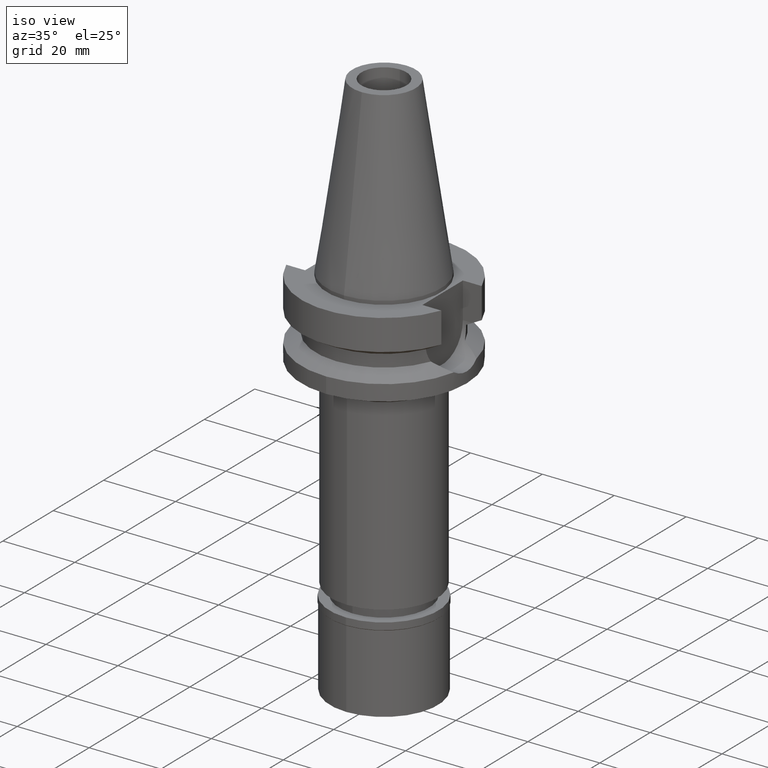
[diagram: clean part render]
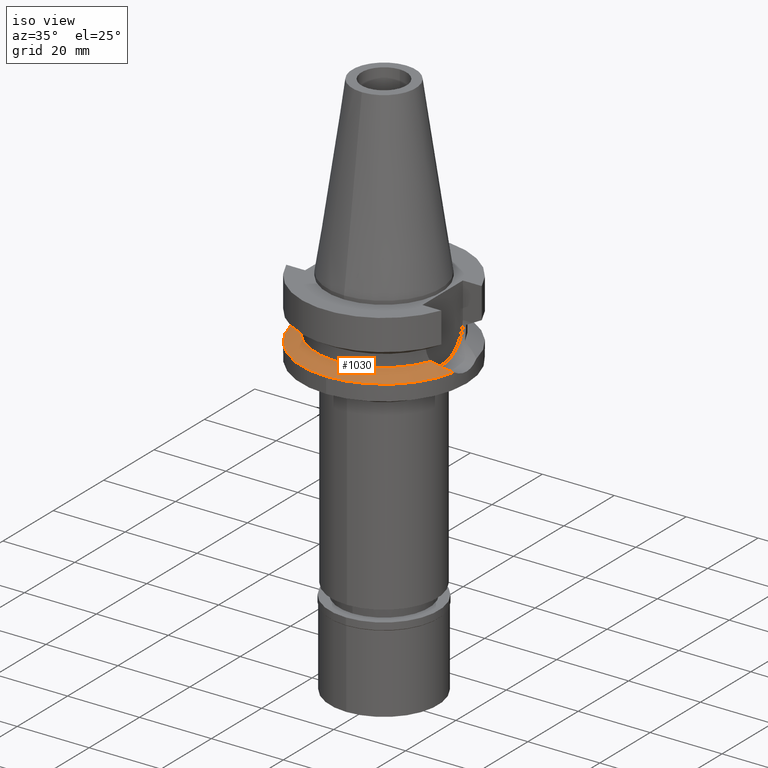
[diagram: same view with one face highlighted and labeled with its STEP entity id]
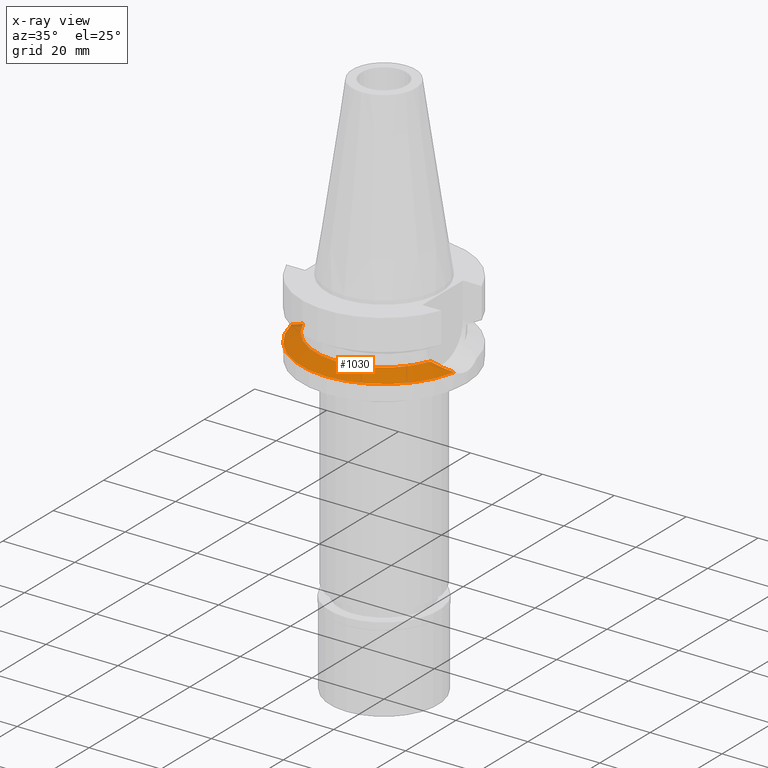
[diagram: x-ray of the same camera — body ghosted, the highlighted face saturated]
A machine part, iso view. The second image highlights one B-rep face of the part: STEP entity #1030.
The next image is the same camera in x-ray: the body ghosted, the highlighted face saturated — about 1% of this face is hidden behind the body in this view.
In plain terms, the highlighted conical surface has half-angle 60 deg.
Its self-contained STEP definition (entity closure, byte-faithful):
#182 = CARTESIAN_POINT ( 'NONE',  ( 0.0000000000000000000, 1.022848384030000006E-14, -17.63279163029000074 ) ) ;
#184 = VERTEX_POINT ( 'NONE', #1760 ) ;
#284 = DIRECTION ( 'NONE',  ( 0.0000000000000000000, 0.0000000000000000000, -1.000000000000000000 ) ) ;
#339 = VERTEX_POINT ( 'NONE', #1360 ) ;
#417 = ORIENTED_EDGE ( 'NONE', *, *, #1633, .F. ) ;
#457 = AXIS2_PLACEMENT_3D ( 'NONE', #2341, #284, #780 ) ;
#526 = AXIS2_PLACEMENT_3D ( 'NONE', #182, #1051, #630 ) ;
#542 = VERTEX_POINT ( 'NONE', #1663 ) ;
#630 = DIRECTION ( 'NONE',  ( 0.9807766722643714852, -0.1951335930638943839, 0.0000000000000000000 ) ) ;
#777 = EDGE_LOOP ( 'NONE', ( #417, #2306, #1637, #1716, #1979 ) ) ;
#780 = DIRECTION ( 'NONE',  ( 0.0000000000000000000, -1.000000000000000000, 0.0000000000000000000 ) ) ;
#783 = EDGE_CURVE ( 'NONE', #1295, #339, #1773, .T. ) ;
#809 = DIRECTION ( 'NONE',  ( 0.0000000000000000000, -1.000000000000000000, 0.0000000000000000000 ) ) ;
#848 = DIRECTION ( 'NONE',  ( 0.0000000000000000000, 0.0000000000000000000, 1.000000000000000000 ) ) ;
#1030 = ADVANCED_FACE ( 'NONE', ( #1454 ), #2001, .T. ) ;
#1034 = CARTESIAN_POINT ( 'NONE',  ( -22.55786346208000026, -4.488072640470000430, -17.63279163029000074 ) ) ;
#1051 = DIRECTION ( 'NONE',  ( 0.0000000000000000000, 0.0000000000000000000, -1.000000000000000000 ) ) ;
#1056 = CIRCLE ( 'NONE', #2713, 19.00000000000000000 ) ;
#1178 = CIRCLE ( 'NONE', #526, 23.00000000000001066 ) ;
#1188 = DIRECTION ( 'NONE',  ( 0.0000000000000000000, -1.000000000000000000, 0.0000000000000000000 ) ) ;
#1202 = DIRECTION ( 'NONE',  ( 0.0000000000000000000, 0.0000000000000000000, -1.000000000000000000 ) ) ;
#1205 = EDGE_CURVE ( 'NONE', #339, #184, #1056, .T. ) ;
#1295 = VERTEX_POINT ( 'NONE', #1034 ) ;
#1321 = CARTESIAN_POINT ( 'NONE',  ( 19.77328210352682092, -6.137069160738744422, -16.28355951937221491 ) ) ;
#1333 = CARTESIAN_POINT ( 'NONE',  ( 21.37344794603349030, -5.343258989385454072, -17.05846002346882173 ) ) ;
#1360 = CARTESIAN_POINT ( 'NONE',  ( -17.75736593456000278, -6.758398853743999624, -15.32339055352999857 ) ) ;
#1364 = CARTESIAN_POINT ( 'NONE',  ( 17.75736593456000278, -6.758398853743999624, -15.32339055352999857 ) ) ;
#1370 = CARTESIAN_POINT ( 'NONE',  ( -19.77328210358169258, -6.137069160714026417, -16.28355951941038171 ) ) ;
#1454 = FACE_OUTER_BOUND ( 'NONE', #777, .T. ) ;
#1633 = EDGE_CURVE ( 'NONE', #2423, #1295, #1781, .T. ) ;
#1637 = ORIENTED_EDGE ( 'NONE', *, *, #1949, .F. ) ;
#1663 = CARTESIAN_POINT ( 'NONE',  ( 22.55786346208000026, -4.488072640470000430, -17.63279163029000074 ) ) ;
#1693 = CARTESIAN_POINT ( 'NONE',  ( 0.0000000000000000000, 1.022848384030000006E-14, -16.47809109191000232 ) ) ;
#1716 = ORIENTED_EDGE ( 'NONE', *, *, #1205, .F. ) ;
#1760 = CARTESIAN_POINT ( 'NONE',  ( 17.75736593456000278, -6.758398853743999624, -15.32339055352999857 ) ) ;
#1773 = B_SPLINE_CURVE_WITH_KNOTS ( 'NONE', 3,
 ( #2262, #1846, #1370, #2276 ),
 .UNSPECIFIED., .F., .F.,
 ( 4, 4 ),
 ( 0.0000000000000000000, 1.000000000000000000 ),
 .UNSPECIFIED. ) ;
#1781 = CIRCLE ( 'NONE', #457, 23.00000000000000000 ) ;
#1846 = CARTESIAN_POINT ( 'NONE',  ( -21.37344794608835841, -5.343258989347697607, -17.05846002349415969 ) ) ;
#1949 = EDGE_CURVE ( 'NONE', #184, #542, #2901, .T. ) ;
#1979 = ORIENTED_EDGE ( 'NONE', *, *, #783, .F. ) ;
#2001 = CONICAL_SURFACE ( 'NONE', #2474, 21.00000000000000000, 1.047197551196400456 ) ;
#2257 = CARTESIAN_POINT ( 'NONE',  ( 0.0000000000000000000, -23.00000000000000000, -17.63279163029000074 ) ) ;
#2262 = CARTESIAN_POINT ( 'NONE',  ( -22.55786346208000026, -4.488072640470000430, -17.63279163029000074 ) ) ;
#2276 = CARTESIAN_POINT ( 'NONE',  ( -17.75736593456000278, -6.758398853743999624, -15.32339055352999857 ) ) ;
#2306 = ORIENTED_EDGE ( 'NONE', *, *, #2812, .F. ) ;
#2341 = CARTESIAN_POINT ( 'NONE',  ( 0.0000000000000000000, 1.022848384030000006E-14, -17.63279163029000074 ) ) ;
#2423 = VERTEX_POINT ( 'NONE', #2257 ) ;
#2460 = CARTESIAN_POINT ( 'NONE',  ( 22.55786346208000026, -4.488072640470000430, -17.63279163029000074 ) ) ;
#2474 = AXIS2_PLACEMENT_3D ( 'NONE', #1693, #1202, #1188 ) ;
#2632 = CARTESIAN_POINT ( 'NONE',  ( 0.0000000000000000000, 1.022848384030000006E-14, -15.32339055352999857 ) ) ;
#2713 = AXIS2_PLACEMENT_3D ( 'NONE', #2632, #848, #809 ) ;
#2812 = EDGE_CURVE ( 'NONE', #542, #2423, #1178, .T. ) ;
#2901 = B_SPLINE_CURVE_WITH_KNOTS ( 'NONE', 3,
 ( #1364, #1321, #1333, #2460 ),
 .UNSPECIFIED., .F., .F.,
 ( 4, 4 ),
 ( 0.0000000000000000000, 1.000000000000000000 ),
 .UNSPECIFIED. ) ;